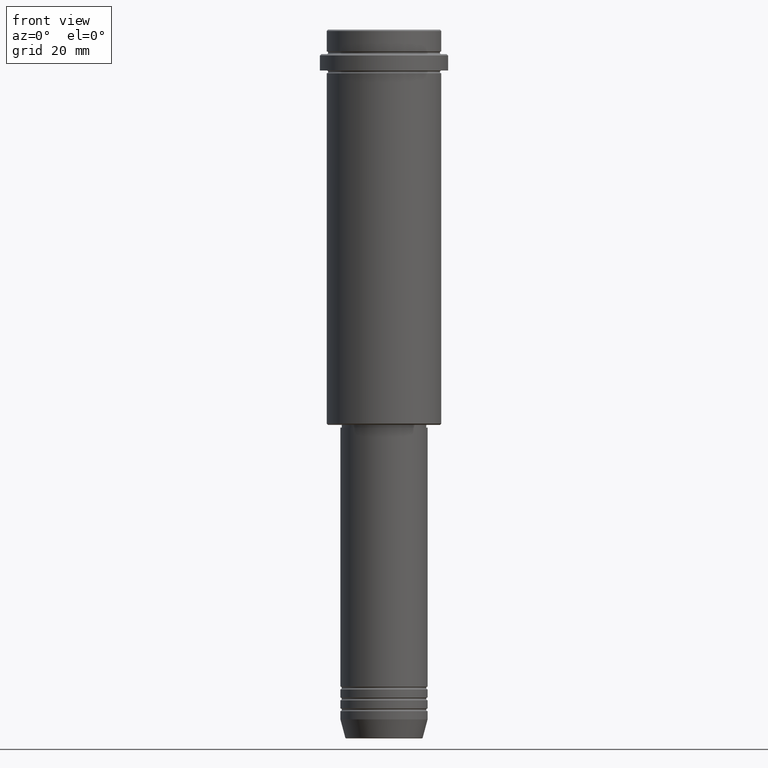
[diagram: clean part render]
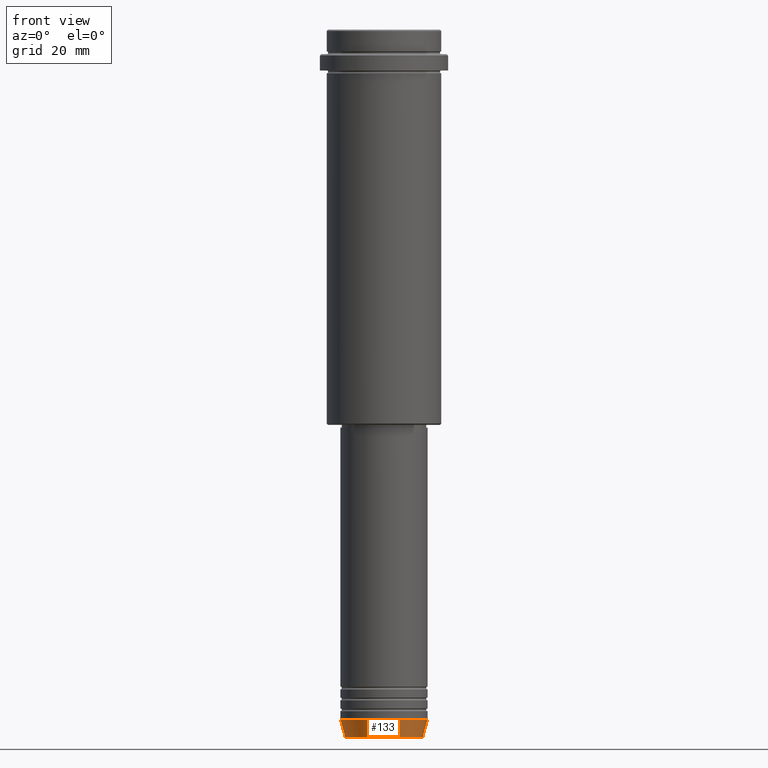
[diagram: same view with one face highlighted and labeled with its STEP entity id]
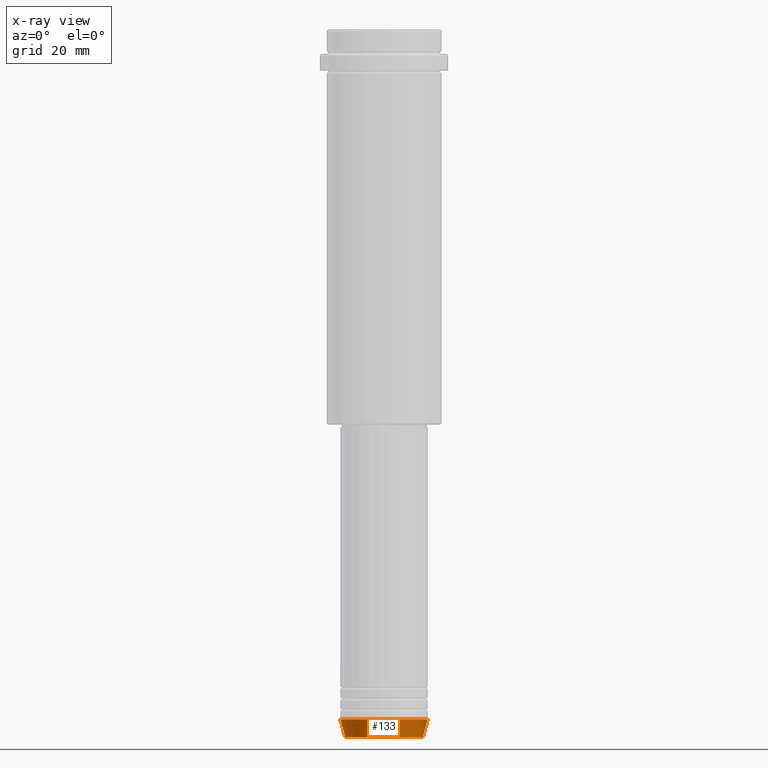
[diagram: x-ray of the same camera — body ghosted, the highlighted face saturated]
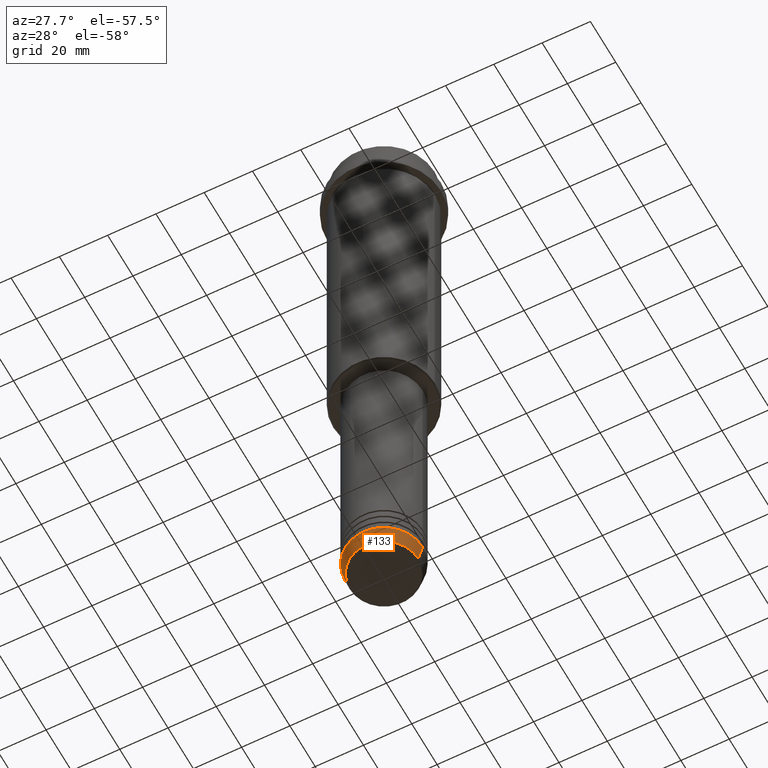
[diagram: same view with one face highlighted and labeled with its STEP entity id]
A machine part, front view. The second image highlights one B-rep face of the part: STEP entity #133.
The next image is the same camera in x-ray: the body ghosted, the highlighted face saturated — about 0% of this face is hidden behind the body in this view.
A second angle (auxiliary view) of the same face is appended — the face is thin or edge-on in the first view.
In plain terms, the highlighted conical surface has half-angle 15 deg.
Its self-contained STEP definition (entity closure, byte-faithful):
#46 = LINE ( 'NONE', #808, #989 ) ;
#133 = ADVANCED_FACE ( 'NONE', ( #970 ), #514, .T. ) ;
#135 = DIRECTION ( 'NONE',  ( 1.000000000000000000, 0.000000000000000000, 0.000000000000000000 ) ) ;
#166 = EDGE_CURVE ( 'NONE', #1277, #867, #640, .T. ) ;
#259 = CARTESIAN_POINT ( 'NONE',  ( -14.22365507213718772, 1.850665122131323337E-15, -259.6294095225512706 ) ) ;
#271 = DIRECTION ( 'NONE',  ( -0.000000000000000000, -0.000000000000000000, 1.000000000000000000 ) ) ;
#272 = CIRCLE ( 'NONE', #475, 14.22365507213718772 ) ;
#274 = ORIENTED_EDGE ( 'NONE', *, *, #646, .T. ) ;
#473 = CARTESIAN_POINT ( 'NONE',  ( -16.00000000000000000, 1.959434878635765131E-15, -253.0000000000000000 ) ) ;
#475 = AXIS2_PLACEMENT_3D ( 'NONE', #932, #271, #488 ) ;
#488 = DIRECTION ( 'NONE',  ( 1.000000000000000000, 0.000000000000000000, 0.000000000000000000 ) ) ;
#513 = AXIS2_PLACEMENT_3D ( 'NONE', #1114, #1239, #135 ) ;
#514 = CONICAL_SURFACE ( 'NONE', #1198, 16.00000000000000000, 0.2617993877991500740 ) ;
#535 = VECTOR ( 'NONE', #653, 1000.000000000000000 ) ;
#538 = DIRECTION ( 'NONE',  ( 1.000000000000000000, 0.000000000000000000, 0.000000000000000000 ) ) ;
#550 = ORIENTED_EDGE ( 'NONE', *, *, #1320, .F. ) ;
#637 = ORIENTED_EDGE ( 'NONE', *, *, #166, .F. ) ;
#640 = LINE ( 'NONE', #766, #535 ) ;
#646 = EDGE_CURVE ( 'NONE', #1277, #1194, #272, .T. ) ;
#653 = DIRECTION ( 'NONE',  ( -0.2588190451025213501, 3.169619151431772337E-17, 0.9659258262890680902 ) ) ;
#683 = CARTESIAN_POINT ( 'NONE',  ( 16.00000000000000000, 0.000000000000000000, -253.0000000000000000 ) ) ;
#766 = CARTESIAN_POINT ( 'NONE',  ( -16.00000000000000000, 1.959434878635765131E-15, -253.0000000000000000 ) ) ;
#808 = CARTESIAN_POINT ( 'NONE',  ( 16.00000000000000000, 0.000000000000000000, -253.0000000000000000 ) ) ;
#828 = VERTEX_POINT ( 'NONE', #683 ) ;
#867 = VERTEX_POINT ( 'NONE', #473 ) ;
#932 = CARTESIAN_POINT ( 'NONE',  ( 0.000000000000000000, 0.000000000000000000, -259.6294095225512706 ) ) ;
#970 = FACE_OUTER_BOUND ( 'NONE', #1244, .T. ) ;
#989 = VECTOR ( 'NONE', #1247, 1000.000000000000000 ) ;
#1012 = CIRCLE ( 'NONE', #513, 16.00000000000000000 ) ;
#1063 = ORIENTED_EDGE ( 'NONE', *, *, #1404, .T. ) ;
#1075 = DIRECTION ( 'NONE',  ( -0.000000000000000000, -0.000000000000000000, 1.000000000000000000 ) ) ;
#1114 = CARTESIAN_POINT ( 'NONE',  ( 0.000000000000000000, 0.000000000000000000, -253.0000000000000000 ) ) ;
#1194 = VERTEX_POINT ( 'NONE', #1308 ) ;
#1198 = AXIS2_PLACEMENT_3D ( 'NONE', #1301, #1075, #538 ) ;
#1239 = DIRECTION ( 'NONE',  ( -0.000000000000000000, -0.000000000000000000, 1.000000000000000000 ) ) ;
#1244 = EDGE_LOOP ( 'NONE', ( #637, #274, #1063, #550 ) ) ;
#1247 = DIRECTION ( 'NONE',  ( 0.2588190451025213501, 0.000000000000000000, 0.9659258262890680902 ) ) ;
#1277 = VERTEX_POINT ( 'NONE', #259 ) ;
#1301 = CARTESIAN_POINT ( 'NONE',  ( 0.000000000000000000, 0.000000000000000000, -253.0000000000000000 ) ) ;
#1308 = CARTESIAN_POINT ( 'NONE',  ( 14.22365507213718772, 0.000000000000000000, -259.6294095225512706 ) ) ;
#1320 = EDGE_CURVE ( 'NONE', #867, #828, #1012, .T. ) ;
#1404 = EDGE_CURVE ( 'NONE', #1194, #828, #46, .T. ) ;